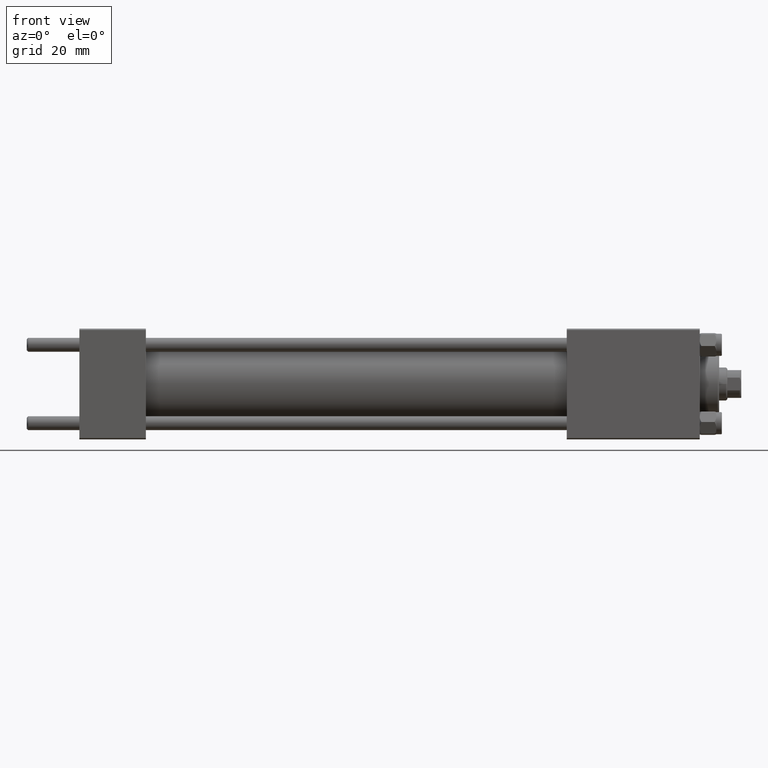
[diagram: clean part render]
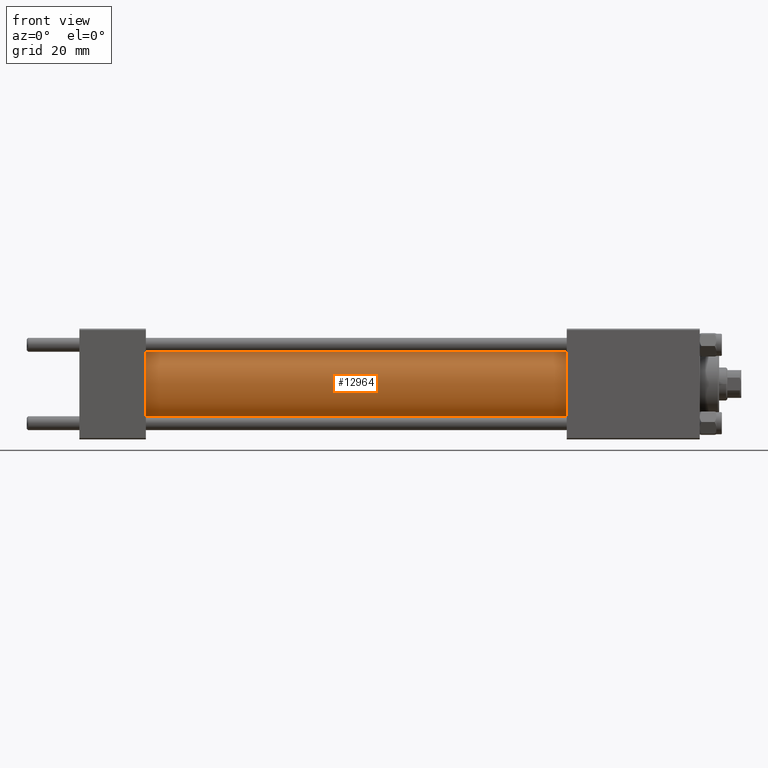
[diagram: same view with one face highlighted and labeled with its STEP entity id]
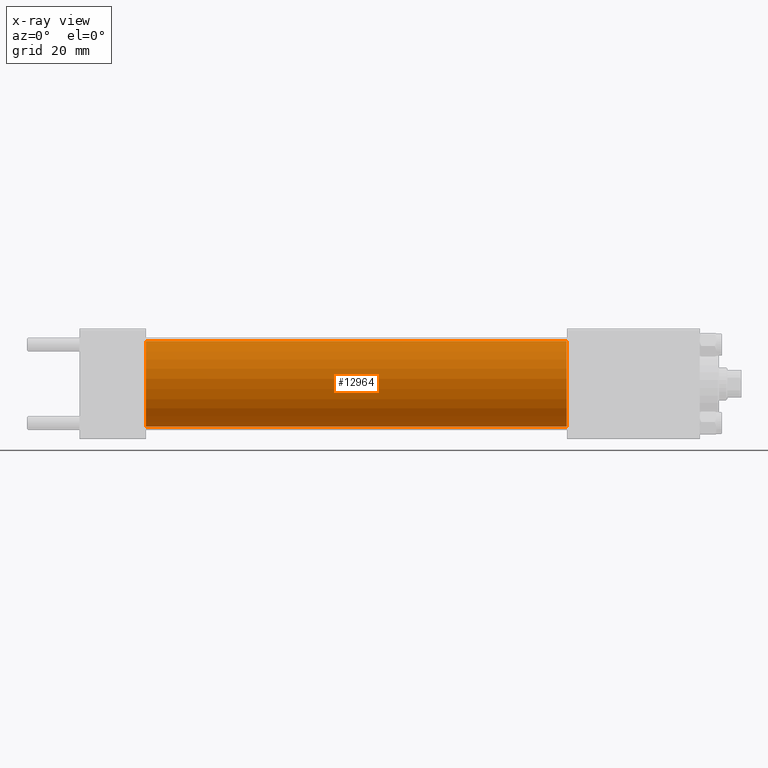
[diagram: x-ray of the same camera — body ghosted, the highlighted face saturated]
A machine part, front view. The second image highlights one B-rep face of the part: STEP entity #12964.
The next image is the same camera in x-ray: the body ghosted, the highlighted face saturated — about 0% of this face is hidden behind the body in this view.
In plain terms, the highlighted cylindrical surface (partial cylindrical patch) has radius 15.5 mm, axis along (-1, -0, -0).
Its self-contained STEP definition (entity closure, byte-faithful):
#1194 = CARTESIAN_POINT ( 'NONE',  ( 176.0000000000000000, 1.898202538678397557E-15, -15.50000000000000000 ) ) ;
#1661 = ORIENTED_EDGE ( 'NONE', *, *, #3262, .T. ) ;
#2854 = FACE_OUTER_BOUND ( 'NONE', #44634, .T. ) ;
#3102 = ORIENTED_EDGE ( 'NONE', *, *, #17547, .F. ) ;
#3262 = EDGE_CURVE ( 'NONE', #48824, #30319, #18744, .T. ) ;
#5511 = LINE ( 'NONE', #35547, #38316 ) ;
#7395 = DIRECTION ( 'NONE',  ( 0.000000000000000000, 0.000000000000000000, 1.000000000000000000 ) ) ;
#7972 = EDGE_CURVE ( 'NONE', #16210, #48824, #5511, .T. ) ;
#8178 = DIRECTION ( 'NONE',  ( 1.000000000000000000, 0.000000000000000000, 0.000000000000000000 ) ) ;
#9988 = VERTEX_POINT ( 'NONE', #1194 ) ;
#12372 = DIRECTION ( 'NONE',  ( -1.000000000000000000, -0.000000000000000000, -0.000000000000000000 ) ) ;
#12964 = ADVANCED_FACE ( 'NONE', ( #2854 ), #25569, .T. ) ;
#14708 = CARTESIAN_POINT ( 'NONE',  ( 176.0000000000000000, 1.898202538678397557E-15, -15.50000000000000000 ) ) ;
#15663 = CARTESIAN_POINT ( 'NONE',  ( 23.99999999999999289, 0.000000000000000000, 15.50000000000000000 ) ) ;
#15677 = DIRECTION ( 'NONE',  ( 0.000000000000000000, 0.000000000000000000, -1.000000000000000000 ) ) ;
#16170 = DIRECTION ( 'NONE',  ( 1.000000000000000000, 0.000000000000000000, 0.000000000000000000 ) ) ;
#16210 = VERTEX_POINT ( 'NONE', #20991 ) ;
#16410 = CARTESIAN_POINT ( 'NONE',  ( 23.99999999999999289, 1.898202538678397557E-15, -15.50000000000000000 ) ) ;
#17547 = EDGE_CURVE ( 'NONE', #16210, #9988, #48346, .T. ) ;
#18744 = CIRCLE ( 'NONE', #47781, 15.50000000000000000 ) ;
#20991 = CARTESIAN_POINT ( 'NONE',  ( 176.0000000000000000, 0.000000000000000000, 15.50000000000000000 ) ) ;
#24320 = CARTESIAN_POINT ( 'NONE',  ( 23.99999999999999289, 0.000000000000000000, 0.000000000000000000 ) ) ;
#25569 = CYLINDRICAL_SURFACE ( 'NONE', #42559, 15.50000000000000000 ) ;
#29017 = ORIENTED_EDGE ( 'NONE', *, *, #7972, .T. ) ;
#30319 = VERTEX_POINT ( 'NONE', #16410 ) ;
#32995 = AXIS2_PLACEMENT_3D ( 'NONE', #43191, #16170, #15677 ) ;
#33603 = DIRECTION ( 'NONE',  ( -1.000000000000000000, -0.000000000000000000, -0.000000000000000000 ) ) ;
#34440 = ORIENTED_EDGE ( 'NONE', *, *, #43121, .F. ) ;
#35547 = CARTESIAN_POINT ( 'NONE',  ( 176.0000000000000000, 0.000000000000000000, 15.50000000000000000 ) ) ;
#35596 = VECTOR ( 'NONE', #33603, 1000.000000000000000 ) ;
#36881 = LINE ( 'NONE', #14708, #35596 ) ;
#37153 = CARTESIAN_POINT ( 'NONE',  ( 176.0000000000000000, 0.000000000000000000, 0.000000000000000000 ) ) ;
#37404 = DIRECTION ( 'NONE',  ( -1.000000000000000000, -0.000000000000000000, -0.000000000000000000 ) ) ;
#38316 = VECTOR ( 'NONE', #12372, 1000.000000000000000 ) ;
#42518 = DIRECTION ( 'NONE',  ( 0.000000000000000000, 0.000000000000000000, 1.000000000000000000 ) ) ;
#42559 = AXIS2_PLACEMENT_3D ( 'NONE', #37153, #37404, #7395 ) ;
#43121 = EDGE_CURVE ( 'NONE', #9988, #30319, #36881, .T. ) ;
#43191 = CARTESIAN_POINT ( 'NONE',  ( 176.0000000000000000, 0.000000000000000000, 0.000000000000000000 ) ) ;
#44634 = EDGE_LOOP ( 'NONE', ( #34440, #3102, #29017, #1661 ) ) ;
#47781 = AXIS2_PLACEMENT_3D ( 'NONE', #24320, #8178, #42518 ) ;
#48346 = CIRCLE ( 'NONE', #32995, 15.50000000000000000 ) ;
#48824 = VERTEX_POINT ( 'NONE', #15663 ) ;